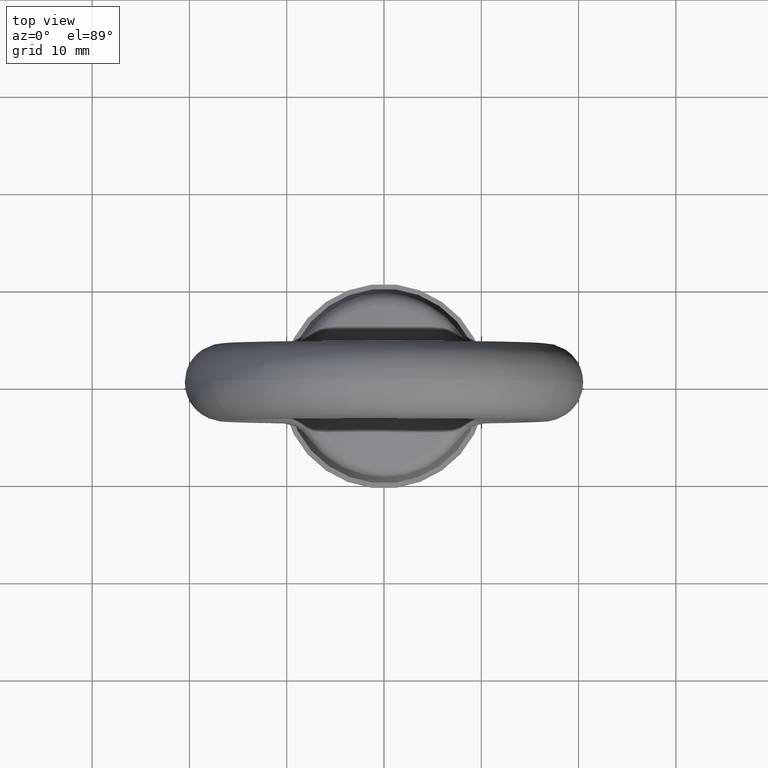
[diagram: clean part render]
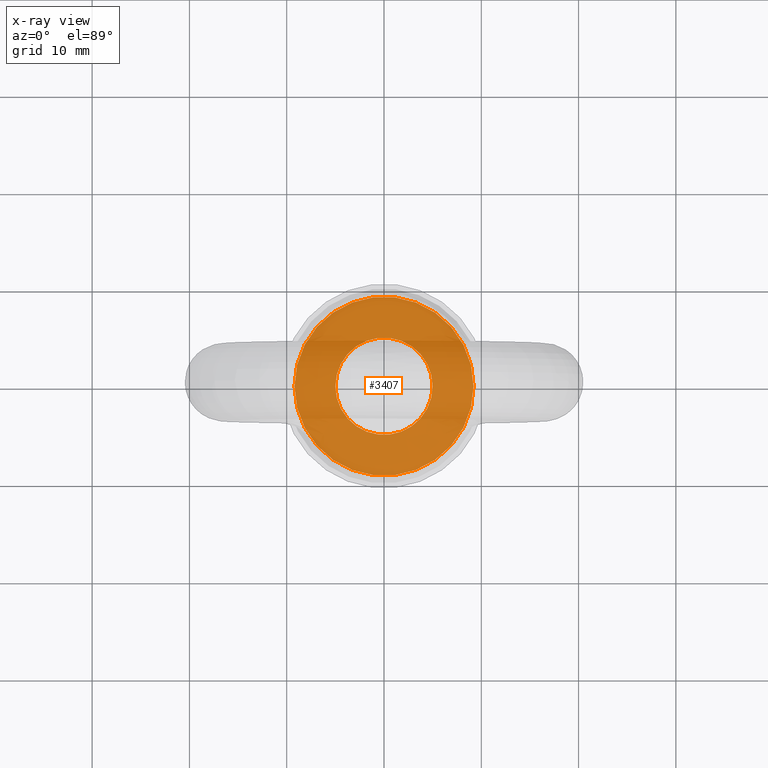
[diagram: x-ray — body ghosted, one internal face saturated and labeled with its STEP entity id]
A machine part, top view, then the same camera in x-ray: the body is ghosted and one INTERNAL B-rep face — a face not visible from any outside direction — is saturated and labeled: STEP entity #3407.
In plain terms, the highlighted planar face has unit normal (0, 0, 1).
Its self-contained STEP definition (entity closure, byte-faithful):
#3248 = EDGE_CURVE ( 'NONE', #3249, #3250, #4186, .T. ) ;
#3249 = VERTEX_POINT ( 'NONE', #4181 ) ;
#3250 = VERTEX_POINT ( 'NONE', #4180 ) ;
#3263 = EDGE_CURVE ( 'NONE', #3264, #3265, #5374, .T. ) ;
#3264 = VERTEX_POINT ( 'NONE', #5369 ) ;
#3265 = VERTEX_POINT ( 'NONE', #5368 ) ;
#3327 = EDGE_LOOP ( 'NONE', ( #3408, #3409 ) ) ;
#3407 = ADVANCED_FACE ( 'NONE', ( #8090, #8089 ), #8088, .T. ) ;
#3408 = ORIENTED_EDGE ( 'NONE', *, *, #3511, .T. ) ;
#3409 = ORIENTED_EDGE ( 'NONE', *, *, #3263, .T. ) ;
#3410 = EDGE_LOOP ( 'NONE', ( #3411, #3412 ) ) ;
#3411 = ORIENTED_EDGE ( 'NONE', *, *, #3248, .F. ) ;
#3412 = ORIENTED_EDGE ( 'NONE', *, *, #3423, .F. ) ;
#3423 = EDGE_CURVE ( 'NONE', #3250, #3249, #8076, .T. ) ;
#3511 = EDGE_CURVE ( 'NONE', #3265, #3264, #6101, .T. ) ;
#4180 = CARTESIAN_POINT ( 'NONE',  ( 9.199999999999999300, 1.126637845516587000E-015, -23.00000000000000000 ) ) ;
#4181 = CARTESIAN_POINT ( 'NONE',  ( -9.199999999999999300, 0.0000000000000000000, -23.00000000000000000 ) ) ;
#4182 = DIRECTION ( 'NONE',  ( 1.000000000000000000, 0.0000000000000000000, 0.0000000000000000000 ) ) ;
#4183 = DIRECTION ( 'NONE',  ( 0.0000000000000000000, 0.0000000000000000000, -1.000000000000000000 ) ) ;
#4184 = CARTESIAN_POINT ( 'NONE',  ( 0.0000000000000000000, 0.0000000000000000000, -23.00000000000000000 ) ) ;
#4185 = AXIS2_PLACEMENT_3D ( 'NONE', #4184, #4183, #4182 ) ;
#4186 = CIRCLE ( 'NONE', #4185, 9.199999999999999300 ) ;
#5368 = CARTESIAN_POINT ( 'NONE',  ( -5.000000000000000000, 0.0000000000000000000, -23.00000000000000000 ) ) ;
#5369 = CARTESIAN_POINT ( 'NONE',  ( 5.000000000000000000, 6.123031769111886300E-016, -23.00000000000000000 ) ) ;
#5370 = DIRECTION ( 'NONE',  ( 1.000000000000000000, 0.0000000000000000000, 0.0000000000000000000 ) ) ;
#5371 = DIRECTION ( 'NONE',  ( 0.0000000000000000000, 0.0000000000000000000, -1.000000000000000000 ) ) ;
#5372 = CARTESIAN_POINT ( 'NONE',  ( 0.0000000000000000000, 0.0000000000000000000, -23.00000000000000000 ) ) ;
#5373 = AXIS2_PLACEMENT_3D ( 'NONE', #5372, #5371, #5370 ) ;
#5374 = CIRCLE ( 'NONE', #5373, 5.000000000000000000 ) ;
#6098 = DIRECTION ( 'NONE',  ( 1.000000000000000000, 0.0000000000000000000, 0.0000000000000000000 ) ) ;
#6099 = DIRECTION ( 'NONE',  ( 0.0000000000000000000, 0.0000000000000000000, -1.000000000000000000 ) ) ;
#6100 = AXIS2_PLACEMENT_3D ( 'NONE', #6107, #6099, #6098 ) ;
#6101 = CIRCLE ( 'NONE', #6100, 5.000000000000000000 ) ;
#6107 = CARTESIAN_POINT ( 'NONE',  ( 0.0000000000000000000, 0.0000000000000000000, -23.00000000000000000 ) ) ;
#8072 = DIRECTION ( 'NONE',  ( 1.000000000000000000, 0.0000000000000000000, 0.0000000000000000000 ) ) ;
#8073 = DIRECTION ( 'NONE',  ( 0.0000000000000000000, 0.0000000000000000000, -1.000000000000000000 ) ) ;
#8074 = CARTESIAN_POINT ( 'NONE',  ( 0.0000000000000000000, 0.0000000000000000000, -23.00000000000000000 ) ) ;
#8075 = AXIS2_PLACEMENT_3D ( 'NONE', #8074, #8073, #8072 ) ;
#8076 = CIRCLE ( 'NONE', #8075, 9.199999999999999300 ) ;
#8084 = DIRECTION ( 'NONE',  ( 1.000000000000000000, 0.0000000000000000000, 0.0000000000000000000 ) ) ;
#8085 = DIRECTION ( 'NONE',  ( 0.0000000000000000000, 0.0000000000000000000, 1.000000000000000000 ) ) ;
#8086 = CARTESIAN_POINT ( 'NONE',  ( 0.0000000000000000000, 0.0000000000000000000, -23.00000000000000000 ) ) ;
#8087 = AXIS2_PLACEMENT_3D ( 'NONE', #8086, #8085, #8084 ) ;
#8088 = PLANE ( 'NONE',  #8087 ) ;
#8089 = FACE_OUTER_BOUND ( 'NONE', #3410, .T. ) ;
#8090 = FACE_BOUND ( 'NONE', #3327, .T. ) ;